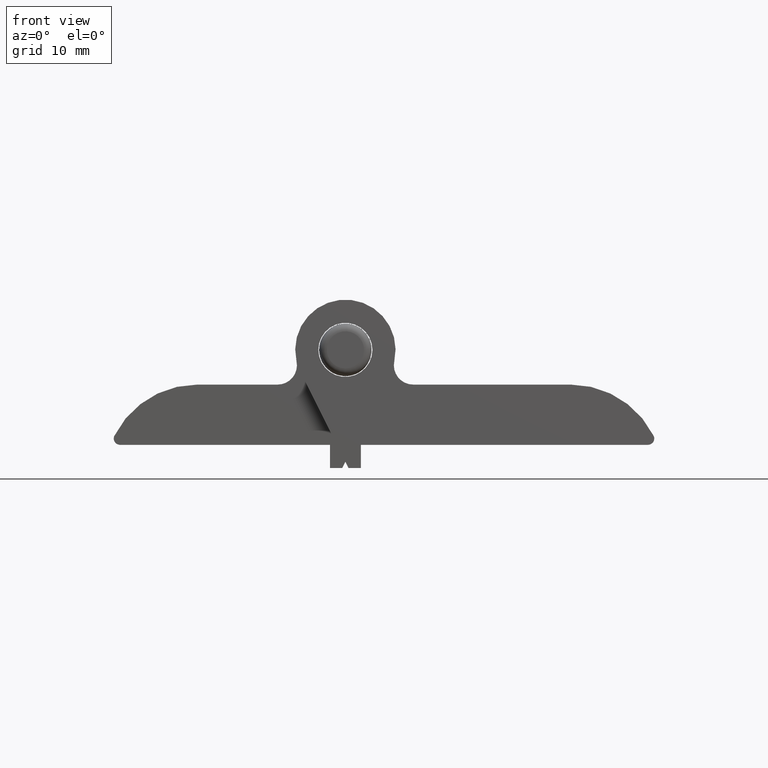
[diagram: clean part render]
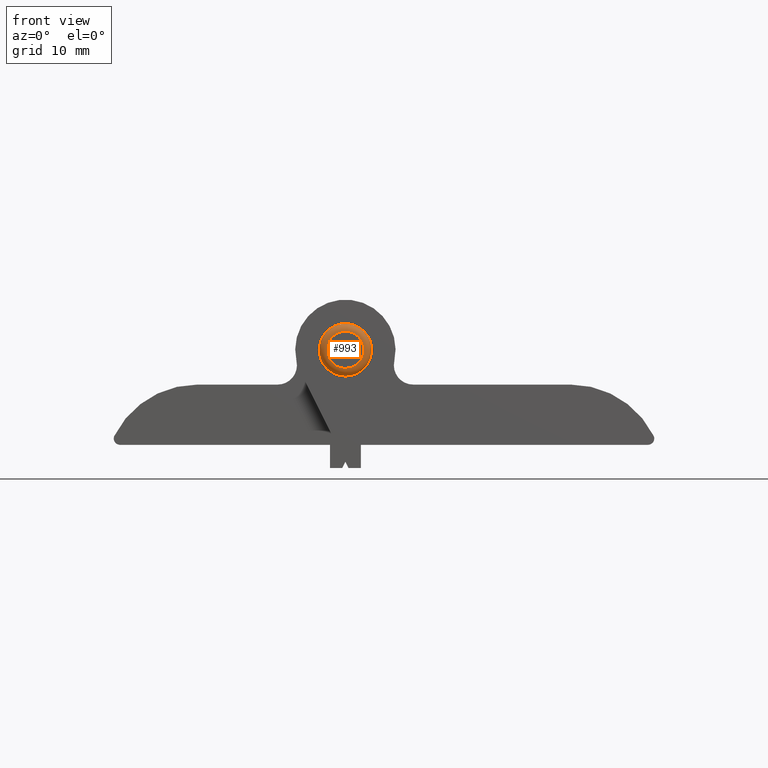
[diagram: same view with one face highlighted and labeled with its STEP entity id]
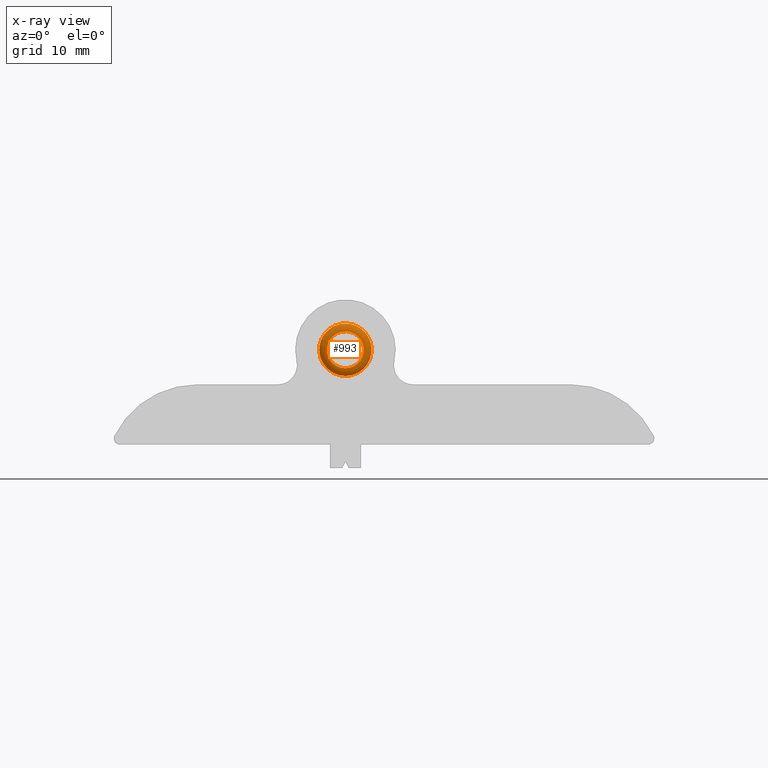
[diagram: x-ray of the same camera — body ghosted, the highlighted face saturated]
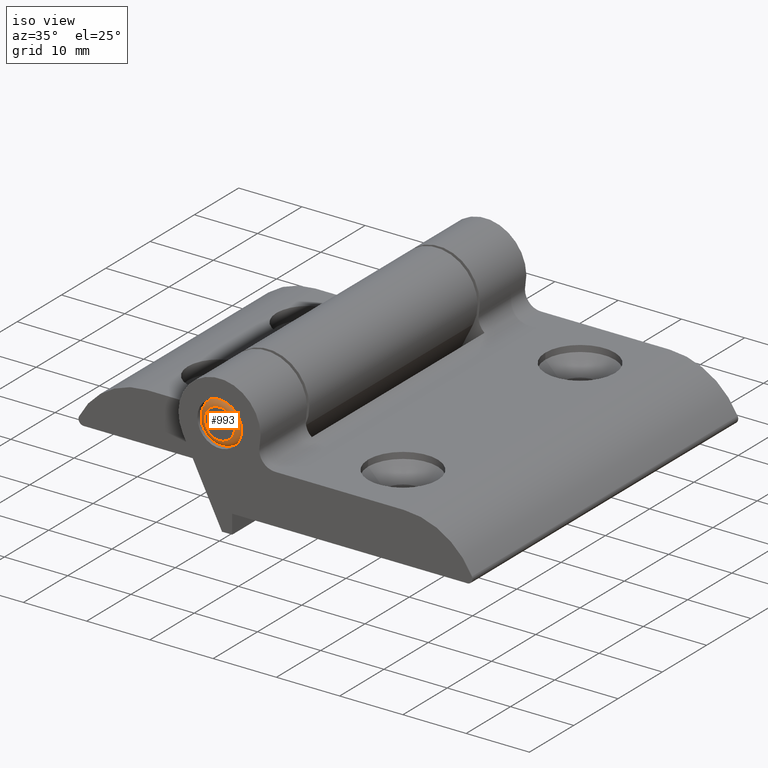
[diagram: same view with one face highlighted and labeled with its STEP entity id]
A machine part, front view. The second image highlights one B-rep face of the part: STEP entity #993.
The next image is the same camera in x-ray: the body ghosted, the highlighted face saturated — about 0% of this face is hidden behind the body in this view.
A second angle (iso view) of the same face is appended — the face is thin or edge-on in the first view.
In plain terms, the highlighted toroidal blend (fillet) surface has major radius 2.4 mm and minor (blend) radius 1 mm.
Its self-contained STEP definition (entity closure, byte-faithful):
#23=TOROIDAL_SURFACE('',#1186,2.4,1.);
#150=FACE_OUTER_BOUND('',#213,.T.);
#213=EDGE_LOOP('',(#923,#924,#925,#926,#927,#928));
#406=CIRCLE('',#1187,2.4);
#407=CIRCLE('',#1188,1.);
#408=CIRCLE('',#1189,3.4);
#409=CIRCLE('',#1190,3.4);
#410=CIRCLE('',#1191,2.4);
#508=VERTEX_POINT('',#1870);
#509=VERTEX_POINT('',#1871);
#510=VERTEX_POINT('',#1873);
#511=VERTEX_POINT('',#1875);
#648=EDGE_CURVE('',#508,#509,#406,.T.);
#649=EDGE_CURVE('',#509,#510,#407,.T.);
#650=EDGE_CURVE('',#510,#511,#408,.T.);
#651=EDGE_CURVE('',#511,#510,#409,.T.);
#652=EDGE_CURVE('',#509,#508,#410,.T.);
#923=ORIENTED_EDGE('',*,*,#648,.T.);
#924=ORIENTED_EDGE('',*,*,#649,.T.);
#925=ORIENTED_EDGE('',*,*,#650,.T.);
#926=ORIENTED_EDGE('',*,*,#651,.T.);
#927=ORIENTED_EDGE('',*,*,#649,.F.);
#928=ORIENTED_EDGE('',*,*,#652,.T.);
#993=ADVANCED_FACE('',(#150),#23,.T.);
#1186=AXIS2_PLACEMENT_3D('',#1869,#1470,#1471);
#1187=AXIS2_PLACEMENT_3D('',#1872,#1472,#1473);
#1188=AXIS2_PLACEMENT_3D('',#1874,#1474,#1475);
#1189=AXIS2_PLACEMENT_3D('',#1876,#1476,#1477);
#1190=AXIS2_PLACEMENT_3D('',#1877,#1478,#1479);
#1191=AXIS2_PLACEMENT_3D('',#1878,#1480,#1481);
#1470=DIRECTION('center_axis',(-1.,0.,0.));
#1471=DIRECTION('ref_axis',(0.,0.,1.));
#1472=DIRECTION('center_axis',(1.,0.,0.));
#1473=DIRECTION('ref_axis',(0.,-1.,0.));
#1474=DIRECTION('center_axis',(0.,-1.,1.22464679914735E-16));
#1475=DIRECTION('ref_axis',(0.,-1.22464679914735E-16,-1.));
#1476=DIRECTION('center_axis',(-1.,0.,0.));
#1477=DIRECTION('ref_axis',(0.,-1.,0.));
#1478=DIRECTION('center_axis',(-1.,0.,0.));
#1479=DIRECTION('ref_axis',(0.,-1.,0.));
#1480=DIRECTION('center_axis',(1.,0.,0.));
#1481=DIRECTION('ref_axis',(0.,-1.,0.));
#1869=CARTESIAN_POINT('Origin',(1.,0.,0.));
#1870=CARTESIAN_POINT('',(0.,2.4,2.93915231795365E-16));
#1871=CARTESIAN_POINT('',(0.,-2.93915231795365E-16,-2.4));
#1872=CARTESIAN_POINT('Origin',(0.,0.,0.));
#1873=CARTESIAN_POINT('',(1.,-4.163799117101E-16,-3.4));
#1874=CARTESIAN_POINT('Origin',(1.,-2.93915231795365E-16,-2.4));
#1875=CARTESIAN_POINT('',(1.,3.4,-4.163799117101E-16));
#1876=CARTESIAN_POINT('Origin',(1.,0.,0.));
#1877=CARTESIAN_POINT('Origin',(1.,0.,0.));
#1878=CARTESIAN_POINT('Origin',(0.,0.,0.));